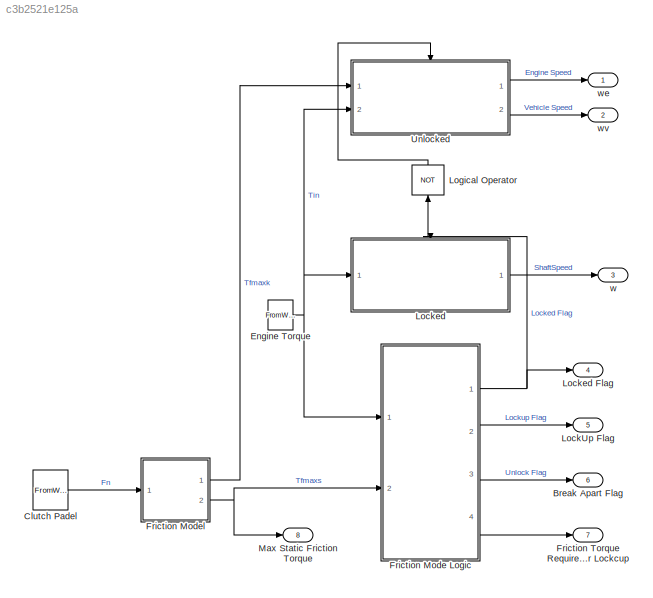
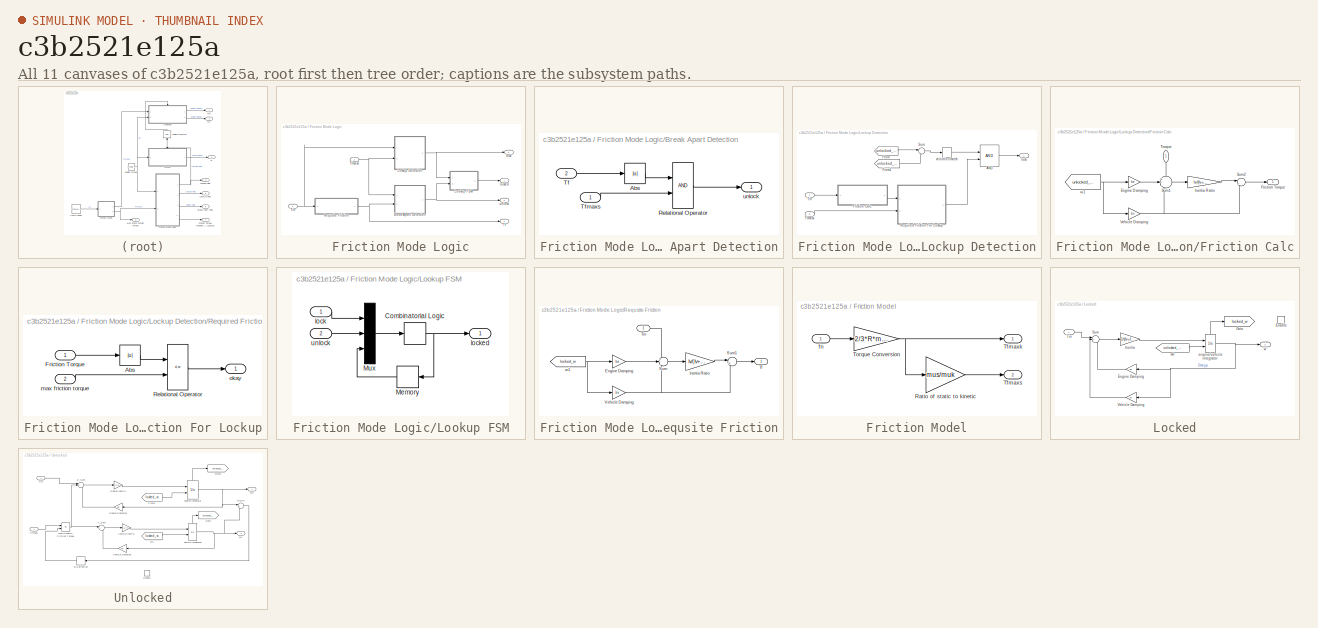
[diagram: thumbnail index - all 11 canvases of the model, root first then tree order]
MODEL slx_c3b2521e125a
KIND model
CONFIG AbsTol = 1e-7
CONFIG EnableMultiTasking = off
CONFIG FixedStep = auto
CONFIG MaxStep = auto
CONFIG MinStep = auto
CONFIG RelTol = 1e-3
CONFIG SampleTimeConstraint = Unconstrained
CONFIG SolverName = ode23
CONFIG StartTime = 0.0
CONFIG StopTime = 10.0
BLOCK [Outport] Break Apart Flag
  Port = 6
BLOCK [FromWorkspace] Clutch Padel
  VariableName = Fn
BLOCK [FromWorkspace] Engine Torque
  VariableName = Tin
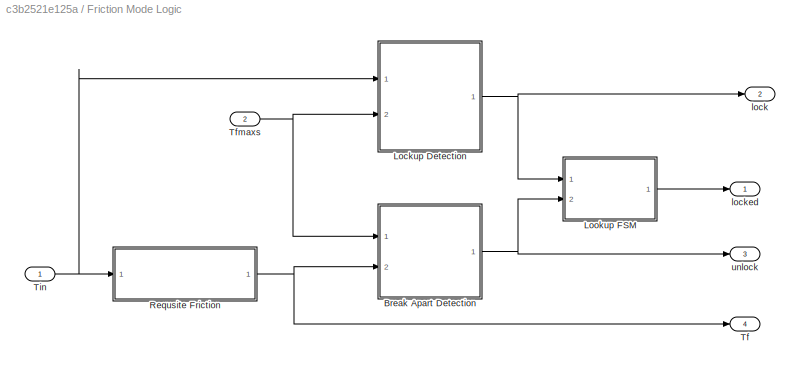
BLOCK [SubSystem] Friction Mode Logic
  Ports = [2, 4]
  RequestExecContextInheritance = off
BLOCK [SubSystem] Friction Mode Logic/Break Apart Detection
  Ports = [2, 1]
  RequestExecContextInheritance = off
BLOCK [Abs] Friction Mode Logic/Break Apart Detection/Abs
  SaturateOnIntegerOverflow = off
BLOCK [RelationalOperator] Friction Mode Logic/Break Apart Detection/Relational Operator
  InputSameDT = off
  OutDataTypeStr = boolean
  Ports = [2, 1]
  RndMeth = Simplest
BLOCK [Inport] Friction Mode Logic/Break Apart Detection/Tf
  Port = 2
BLOCK [Inport] Friction Mode Logic/Break Apart Detection/Tfmaxs
BLOCK [Outport] Friction Mode Logic/Break Apart Detection/unlock
BLOCK [SubSystem] Friction Mode Logic/Lockup Detection
  Ports = [2, 1]
  RequestExecContextInheritance = off
BLOCK [Logic] Friction Mode Logic/Lockup Detection/AND
  AllPortsSameDT = off
  IconShape = distinctive
  OutDataTypeStr = boolean
  Ports = [2, 1]
BLOCK [SubSystem] Friction Mode Logic/Lockup Detection/Friction Calc
  Ports = [1, 1]
  RequestExecContextInheritance = off
BLOCK [Gain] Friction Mode Logic/Lockup Detection/Friction Calc/Engine Damping
  Gain = be
BLOCK [Outport] Friction Mode Logic/Lockup Detection/Friction Calc/Friction Torque
BLOCK [Gain] Friction Mode Logic/Lockup Detection/Friction Calc/Inertia Ratio
  Gain = Iv/(Iv+Ie)
BLOCK [Sum] Friction Mode Logic/Lockup Detection/Friction Calc/Sum1
  Inputs = +--
  Ports = [3, 1]
BLOCK [Sum] Friction Mode Logic/Lockup Detection/Friction Calc/Sum2
  Inputs = |++
  Ports = [2, 1]
BLOCK [Inport] Friction Mode Logic/Lockup Detection/Friction Calc/Torque
  NameLocation = left
BLOCK [Gain] Friction Mode Logic/Lockup Detection/Friction Calc/Vehicle Damping
  Gain = bv
BLOCK [From] Friction Mode Logic/Lockup Detection/Friction Calc/w1
  GotoTag = unlocked_we
  TagVisibility = global
BLOCK [From] Friction Mode Logic/Lockup Detection/From
  GotoTag = unlocked_we
  TagVisibility = global
BLOCK [From] Friction Mode Logic/Lockup Detection/From1
  GotoTag = unlocked_wv
  TagVisibility = global
BLOCK [SubSystem] Friction Mode Logic/Lockup Detection/Required Friction For Lockup
  Ports = [2, 1]
  RequestExecContextInheritance = off
BLOCK [Abs] Friction Mode Logic/Lockup Detection/Required Friction For Lockup/Abs
  SaturateOnIntegerOverflow = off
BLOCK [Inport] Friction Mode Logic/Lockup Detection/Required Friction For Lockup/Friction Torque
BLOCK [RelationalOperator] Friction Mode Logic/Lockup Detection/Required Friction For Lockup/Relational Operator
  InputSameDT = off
  Operator = <=
  OutDataTypeStr = boolean
  Ports = [2, 1]
  RndMeth = Simplest
BLOCK [Inport] Friction Mode Logic/Lockup Detection/Required Friction For Lockup/max friction torque
  Port = 2
BLOCK [Outport] Friction Mode Logic/Lockup Detection/Required Friction For Lockup/okay
BLOCK [Sum] Friction Mode Logic/Lockup Detection/Sum
  Inputs = |+-
  Ports = [2, 1]
BLOCK [Inport] Friction Mode Logic/Lockup Detection/Tfmaxs
  Port = 2
BLOCK [Inport] Friction Mode Logic/Lockup Detection/Tin
BLOCK [Outport] Friction Mode Logic/Lockup Detection/lock
BLOCK [HitCross] Friction Mode Logic/Lockup Detection/velocities match
  Ports = [1, 1]
BLOCK [SubSystem] Friction Mode Logic/Lookup FSM
  Ports = [2, 1]
  RequestExecContextInheritance = off
BLOCK [CombinatorialLogic] Friction Mode Logic/Lookup FSM/Combinatorial Logic
  TruthTable = [0;1;0;0;1;1;1;0]
BLOCK [Memory] Friction Mode Logic/Lookup FSM/Memory
  NameLocation = top
BLOCK [Mux] Friction Mode Logic/Lookup FSM/Mux
  DisplayOption = bar
  Inputs = 3
  Ports = [3, 1]
BLOCK [Inport] Friction Mode Logic/Lookup FSM/lock
BLOCK [Outport] Friction Mode Logic/Lookup FSM/locked
BLOCK [Inport] Friction Mode Logic/Lookup FSM/unlock
  Port = 2
BLOCK [SubSystem] Friction Mode Logic/Requsite Friction
  Ports = [1, 1]
  RequestExecContextInheritance = off
BLOCK [Gain] Friction Mode Logic/Requsite Friction/Engine Damping
  Gain = be
BLOCK [Gain] Friction Mode Logic/Requsite Friction/Inertia Ratio
  Gain = Iv/(Iv+Ie)
BLOCK [Sum] Friction Mode Logic/Requsite Friction/Sum
  Inputs = +--
  Ports = [3, 1]
BLOCK [Sum] Friction Mode Logic/Requsite Friction/Sum1
  Inputs = |++
  Ports = [2, 1]
BLOCK [Outport] Friction Mode Logic/Requsite Friction/Tf
BLOCK [Inport] Friction Mode Logic/Requsite Friction/Tin
BLOCK [Gain] Friction Mode Logic/Requsite Friction/Vehicle Damping
  Gain = bv
BLOCK [From] Friction Mode Logic/Requsite Friction/w1
  GotoTag = locked_w
  TagVisibility = global
BLOCK [Outport] Friction Mode Logic/Tf
  Port = 4
BLOCK [Inport] Friction Mode Logic/Tfmaxs
  Port = 2
BLOCK [Inport] Friction Mode Logic/Tin
BLOCK [Outport] Friction Mode Logic/lock
  Port = 2
BLOCK [Outport] Friction Mode Logic/locked
BLOCK [Outport] Friction Mode Logic/unlock
  Port = 3
BLOCK [SubSystem] Friction Model
  Ports = [1, 2]
  RequestExecContextInheritance = off
BLOCK [Gain] Friction Model/Ratio of static to kinetic
  Gain = mus/muk
BLOCK [Outport] Friction Model/Tfmaxk
BLOCK [Outport] Friction Model/Tfmaxs
  Port = 2
BLOCK [Gain] Friction Model/Torque Conversion
  Gain = 2/3*R*muk
BLOCK [Inport] Friction Model/fn
BLOCK [Outport] Friction Torque Required for Lockcup
  Port = 7
BLOCK [Outport] LockUp Flag
  Port = 5
BLOCK [SubSystem] Locked
  Ports = [1, 1, 1]
  RequestExecContextInheritance = off
BLOCK [Outport] Locked Flag
  Port = 4
BLOCK [EnablePort] Locked/Enable
  Ports = []
BLOCK [Gain] Locked/Engine Damping
  Gain = be
  NameLocation = top
BLOCK [Goto] Locked/Goto
  GotoTag = locked_w
  TagVisibility = global
BLOCK [Gain] Locked/Inertia
  Gain = 1/(Iv+Ie)
BLOCK [Sum] Locked/Sum
  Inputs = |+--
  Ports = [3, 1]
BLOCK [Inport] Locked/Tin
BLOCK [Gain] Locked/Vehicle Damping
  Gain = bv
  NameLocation = top
BLOCK [Integrator] Locked/engine//vehicle integrator
  InitialConditionSource = external
  Ports = [2, 1, 0, 0, 1]
  ShowStatePort = on
BLOCK [Outport] Locked/w
BLOCK [From] Locked/w0
  GotoTag = unlocked_we
  TagVisibility = global
BLOCK [Logic] Logical Operator
  AllPortsSameDT = off
  IconShape = distinctive
  NameLocation = right
  Operator = NOT
  OutDataTypeStr = boolean
  Ports = [1, 1]
BLOCK [Outport] Max Static Friction Torque
  Port = 8
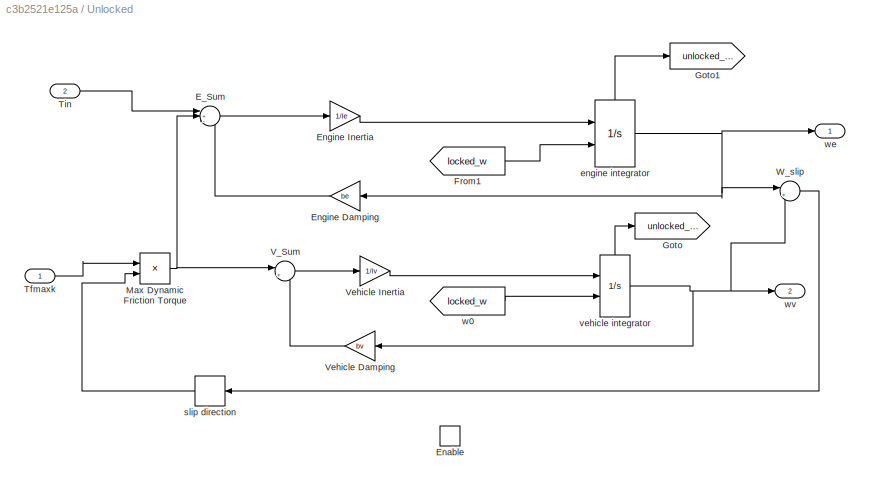
BLOCK [SubSystem] Unlocked
  Ports = [2, 2, 1]
  RequestExecContextInheritance = off
BLOCK [Sum] Unlocked/E_Sum
  Inputs = |+--
  NameLocation = top
  Ports = [3, 1]
BLOCK [EnablePort] Unlocked/Enable
  Ports = []
BLOCK [Gain] Unlocked/Engine Damping
  Gain = be
BLOCK [Gain] Unlocked/Engine Inertia
  Gain = 1/Ie
BLOCK [From] Unlocked/From1
  GotoTag = locked_w
  TagVisibility = global
BLOCK [Goto] Unlocked/Goto
  GotoTag = unlocked_wv
  TagVisibility = global
BLOCK [Goto] Unlocked/Goto1
  GotoTag = unlocked_we
  TagVisibility = global
BLOCK [Product] Unlocked/Max Dynamic Friction Torque
  Ports = [2, 1]
BLOCK [Inport] Unlocked/Tfmaxk
BLOCK [Inport] Unlocked/Tin
  Port = 2
BLOCK [Sum] Unlocked/V_Sum
  Inputs = |+-
  NameLocation = top
  Ports = [2, 1]
BLOCK [Gain] Unlocked/Vehicle Damping
  Gain = bv
BLOCK [Gain] Unlocked/Vehicle Inertia
  Gain = 1/Iv
BLOCK [Sum] Unlocked/W_slip
  Inputs = |+-
  NameLocation = top
  Ports = [2, 1]
BLOCK [Integrator] Unlocked/engine integrator
  InitialConditionSource = external
  Ports = [2, 1, 0, 0, 1]
  ShowStatePort = on
BLOCK [Signum] Unlocked/slip direction
  NameLocation = top
BLOCK [Integrator] Unlocked/vehicle integrator
  InitialConditionSource = external
  Ports = [2, 1, 0, 0, 1]
  ShowStatePort = on
BLOCK [From] Unlocked/w0
  GotoTag = locked_w
  TagVisibility = global
BLOCK [Outport] Unlocked/we
BLOCK [Outport] Unlocked/wv
  Port = 2
BLOCK [Outport] w
  Port = 3
BLOCK [Outport] we
BLOCK [Outport] wv
  Port = 2
LINE Clutch Padel:1 -> Friction Model:1
NET Engine Torque:1 -> Friction Mode Logic:1, Locked:1, Unlocked:2
LINE Friction Mode Logic/Break Apart Detection/Abs:1 -> Friction Mode Logic/Break Apart Detection/Relational Operator:1
LINE Friction Mode Logic/Break Apart Detection/Relational Operator:1 -> Friction Mode Logic/Break Apart Detection/unlock:1
LINE Friction Mode Logic/Break Apart Detection/Tf:1 -> Friction Mode Logic/Break Apart Detection/Abs:1
LINE Friction Mode Logic/Break Apart Detection/Tfmaxs:1 -> Friction Mode Logic/Break Apart Detection/Relational Operator:2
NET Friction Mode Logic/Break Apart Detection:1 -> Friction Mode Logic/Lookup FSM:2, Friction Mode Logic/unlock:1
LINE Friction Mode Logic/Lockup Detection/AND:1 -> Friction Mode Logic/Lockup Detection/lock:1
LINE Friction Mode Logic/Lockup Detection/Friction Calc/Engine Damping:1 -> Friction Mode Logic/Lockup Detection/Friction Calc/Sum1:2
LINE Friction Mode Logic/Lockup Detection/Friction Calc/Inertia Ratio:1 -> Friction Mode Logic/Lockup Detection/Friction Calc/Sum2:1
LINE Friction Mode Logic/Lockup Detection/Friction Calc/Sum1:1 -> Friction Mode Logic/Lockup Detection/Friction Calc/Inertia Ratio:1
LINE Friction Mode Logic/Lockup Detection/Friction Calc/Sum2:1 -> Friction Mode Logic/Lockup Detection/Friction Calc/Friction Torque:1
LINE Friction Mode Logic/Lockup Detection/Friction Calc/Torque:1 -> Friction Mode Logic/Lockup Detection/Friction Calc/Sum1:1
NET Friction Mode Logic/Lockup Detection/Friction Calc/Vehicle Damping:1 -> Friction Mode Logic/Lockup Detection/Friction Calc/Sum1:3, Friction Mode Logic/Lockup Detection/Friction Calc/Sum2:2
NET Friction Mode Logic/Lockup Detection/Friction Calc/w1:1 -> Friction Mode Logic/Lockup Detection/Friction Calc/Engine Damping:1, Friction Mode Logic/Lockup Detection/Friction Calc/Vehicle Damping:1
LINE Friction Mode Logic/Lockup Detection/Friction Calc:1 -> Friction Mode Logic/Lockup Detection/Required Friction For Lockup:1
LINE Friction Mode Logic/Lockup Detection/From1:1 -> Friction Mode Logic/Lockup Detection/Sum:2
LINE Friction Mode Logic/Lockup Detection/From:1 -> Friction Mode Logic/Lockup Detection/Sum:1
LINE Friction Mode Logic/Lockup Detection/Required Friction For Lockup/Abs:1 -> Friction Mode Logic/Lockup Detection/Required Friction For Lockup/Relational Operator:1
LINE Friction Mode Logic/Lockup Detection/Required Friction For Lockup/Friction Torque:1 -> Friction Mode Logic/Lockup Detection/Required Friction For Lockup/Abs:1
LINE Friction Mode Logic/Lockup Detection/Required Friction For Lockup/Relational Operator:1 -> Friction Mode Logic/Lockup Detection/Required Friction For Lockup/okay:1
LINE Friction Mode Logic/Lockup Detection/Required Friction For Lockup/max friction torque:1 -> Friction Mode Logic/Lockup Detection/Required Friction For Lockup/Relational Operator:2
LINE Friction Mode Logic/Lockup Detection/Required Friction For Lockup:1 -> Friction Mode Logic/Lockup Detection/AND:2
LINE Friction Mode Logic/Lockup Detection/Sum:1 -> Friction Mode Logic/Lockup Detection/velocities match:1
LINE Friction Mode Logic/Lockup Detection/Tfmaxs:1 -> Friction Mode Logic/Lockup Detection/Required Friction For Lockup:2
LINE Friction Mode Logic/Lockup Detection/Tin:1 -> Friction Mode Logic/Lockup Detection/Friction Calc:1
LINE Friction Mode Logic/Lockup Detection/velocities match:1 -> Friction Mode Logic/Lockup Detection/AND:1
NET Friction Mode Logic/Lockup Detection:1 -> Friction Mode Logic/Lookup FSM:1, Friction Mode Logic/lock:1
NET Friction Mode Logic/Lookup FSM/Combinatorial Logic:1 -> Friction Mode Logic/Lookup FSM/Memory:1, Friction Mode Logic/Lookup FSM/locked:1
LINE Friction Mode Logic/Lookup FSM/Memory:1 -> Friction Mode Logic/Lookup FSM/Mux:3
LINE Friction Mode Logic/Lookup FSM/Mux:1 -> Friction Mode Logic/Lookup FSM/Combinatorial Logic:1
LINE Friction Mode Logic/Lookup FSM/lock:1 -> Friction Mode Logic/Lookup FSM/Mux:1
LINE Friction Mode Logic/Lookup FSM/unlock:1 -> Friction Mode Logic/Lookup FSM/Mux:2
LINE Friction Mode Logic/Lookup FSM:1 -> Friction Mode Logic/locked:1
LINE Friction Mode Logic/Requsite Friction/Engine Damping:1 -> Friction Mode Logic/Requsite Friction/Sum:2
LINE Friction Mode Logic/Requsite Friction/Inertia Ratio:1 -> Friction Mode Logic/Requsite Friction/Sum1:1
LINE Friction Mode Logic/Requsite Friction/Sum1:1 -> Friction Mode Logic/Requsite Friction/Tf:1
LINE Friction Mode Logic/Requsite Friction/Sum:1 -> Friction Mode Logic/Requsite Friction/Inertia Ratio:1
LINE Friction Mode Logic/Requsite Friction/Tin:1 -> Friction Mode Logic/Requsite Friction/Sum:1
NET Friction Mode Logic/Requsite Friction/Vehicle Damping:1 -> Friction Mode Logic/Requsite Friction/Sum1:2, Friction Mode Logic/Requsite Friction/Sum:3
NET Friction Mode Logic/Requsite Friction/w1:1 -> Friction Mode Logic/Requsite Friction/Engine Damping:1, Friction Mode Logic/Requsite Friction/Vehicle Damping:1
NET Friction Mode Logic/Requsite Friction:1 -> Friction Mode Logic/Break Apart Detection:2, Friction Mode Logic/Tf:1
NET Friction Mode Logic/Tfmaxs:1 -> Friction Mode Logic/Break Apart Detection:1, Friction Mode Logic/Lockup Detection:2
NET Friction Mode Logic/Tin:1 -> Friction Mode Logic/Lockup Detection:1, Friction Mode Logic/Requsite Friction:1
NET Friction Mode Logic:1 -> Locked Flag:1, Locked:enable, Logical Operator:1
LINE Friction Mode Logic:2 -> LockUp Flag:1
LINE Friction Mode Logic:3 -> Break Apart Flag:1
LINE Friction Mode Logic:4 -> Friction Torque Required for Lockcup:1
LINE Friction Model/Ratio of static to kinetic:1 -> Friction Model/Tfmaxs:1
NET Friction Model/Torque Conversion:1 -> Friction Model/Ratio of static to kinetic:1, Friction Model/Tfmaxk:1
LINE Friction Model/fn:1 -> Friction Model/Torque Conversion:1
LINE Friction Model:1 -> Unlocked:1
NET Friction Model:2 -> Friction Mode Logic:2, Max Static Friction Torque:1
LINE Locked/Engine Damping:1 -> Locked/Sum:3
LINE Locked/Inertia:1 -> Locked/engine//vehicle integrator:1
LINE Locked/Sum:1 -> Locked/Inertia:1
LINE Locked/Tin:1 -> Locked/Sum:1
LINE Locked/Vehicle Damping:1 -> Locked/Sum:2
NET Locked/engine//vehicle integrator:1 -> Locked/Engine Damping:1, Locked/Vehicle Damping:1, Locked/w:1
LINE Locked/engine//vehicle integrator:state -> Locked/Goto:1
LINE Locked/w0:1 -> Locked/engine//vehicle integrator:2
LINE Locked:1 -> w:1
LINE Logical Operator:1 -> Unlocked:enable
LINE Unlocked/E_Sum:1 -> Unlocked/Engine Inertia:1
LINE Unlocked/Engine Damping:1 -> Unlocked/E_Sum:3
LINE Unlocked/Engine Inertia:1 -> Unlocked/engine integrator:1
LINE Unlocked/From1:1 -> Unlocked/engine integrator:2
NET Unlocked/Max Dynamic Friction Torque:1 -> Unlocked/E_Sum:2, Unlocked/V_Sum:1
LINE Unlocked/Tfmaxk:1 -> Unlocked/Max Dynamic Friction Torque:1
LINE Unlocked/Tin:1 -> Unlocked/E_Sum:1
LINE Unlocked/V_Sum:1 -> Unlocked/Vehicle Inertia:1
LINE Unlocked/Vehicle Damping:1 -> Unlocked/V_Sum:2
LINE Unlocked/Vehicle Inertia:1 -> Unlocked/vehicle integrator:1
LINE Unlocked/W_slip:1 -> Unlocked/slip direction:1
NET Unlocked/engine integrator:1 -> Unlocked/Engine Damping:1, Unlocked/W_slip:1, Unlocked/we:1
LINE Unlocked/engine integrator:state -> Unlocked/Goto1:1
LINE Unlocked/slip direction:1 -> Unlocked/Max Dynamic Friction Torque:2
NET Unlocked/vehicle integrator:1 -> Unlocked/Vehicle Damping:1, Unlocked/W_slip:2, Unlocked/wv:1
LINE Unlocked/vehicle integrator:state -> Unlocked/Goto:1
LINE Unlocked/w0:1 -> Unlocked/vehicle integrator:2
LINE Unlocked:1 -> we:1
LINE Unlocked:2 -> wv:1
note: NET lines group one-source signal fan-out (src -> all destinations, sorted); 1:1 wires keep LINE
